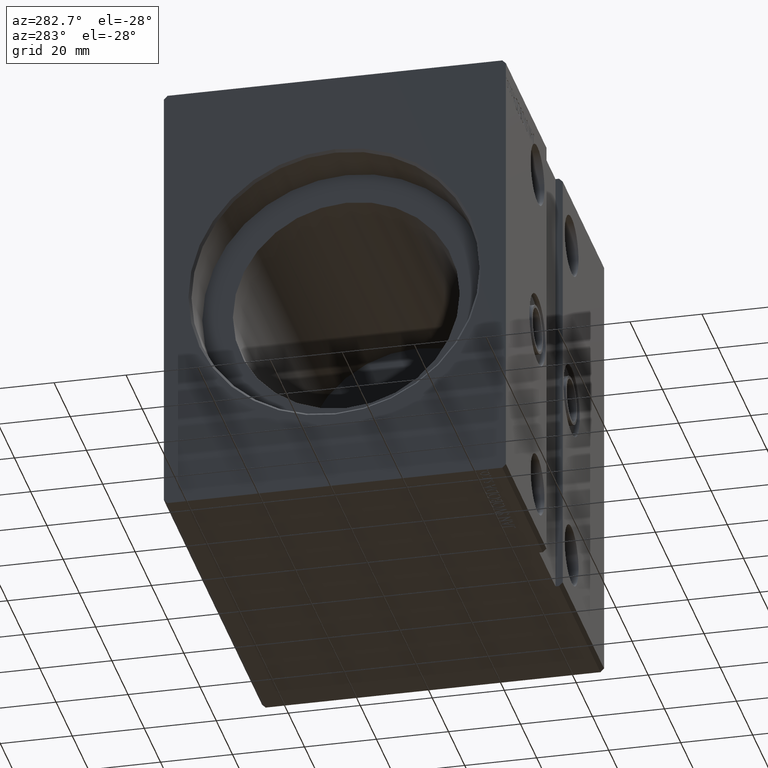
[diagram: clean part render]
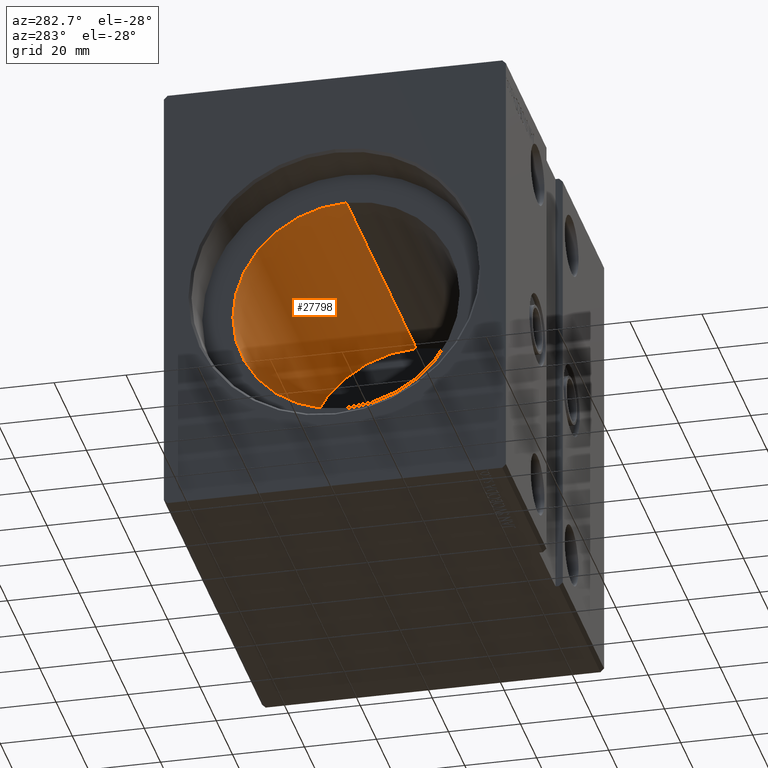
[diagram: same view with one face highlighted and labeled with its STEP entity id]
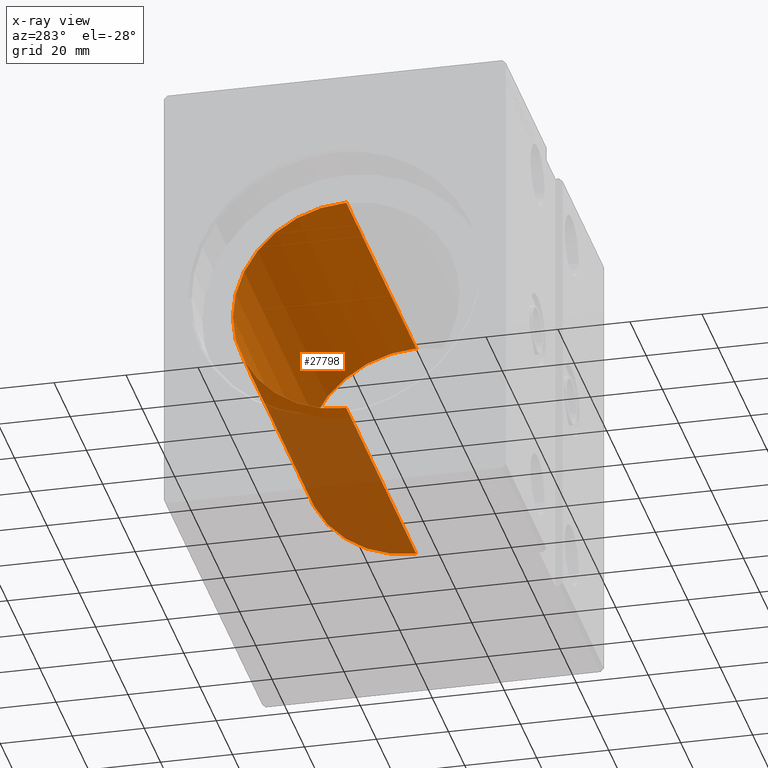
[diagram: x-ray of the same camera — body ghosted, the highlighted face saturated]
A machine part, auxiliary view. The second image highlights one B-rep face of the part: STEP entity #27798.
The next image is the same camera in x-ray: the body ghosted, the highlighted face saturated — about 30% of this face is hidden behind the body in this view.
In plain terms, the highlighted cylindrical surface (partial cylindrical patch) has radius 31.5 mm, axis along (-1, -0, -0).
Its self-contained STEP definition (entity closure, byte-faithful):
#453 = DIRECTION ( 'NONE',  ( -1.000000000000000000, -0.000000000000000000, -0.000000000000000000 ) ) ;
#1559 = DIRECTION ( 'NONE',  ( -1.000000000000000000, 0.000000000000000000, 0.000000000000000000 ) ) ;
#1640 = EDGE_LOOP ( 'NONE', ( #10073, #5265, #5868, #31668 ) ) ;
#2308 = DIRECTION ( 'NONE',  ( 0.000000000000000000, 0.000000000000000000, 1.000000000000000000 ) ) ;
#4283 = EDGE_CURVE ( 'NONE', #34338, #8319, #26242, .T. ) ;
#5265 = ORIENTED_EDGE ( 'NONE', *, *, #40065, .F. ) ;
#5368 = VERTEX_POINT ( 'NONE', #7342 ) ;
#5570 = CARTESIAN_POINT ( 'NONE',  ( 13.99999999999999822, 3.857637417314162689E-15, -31.50000000000000000 ) ) ;
#5868 = ORIENTED_EDGE ( 'NONE', *, *, #34011, .T. ) ;
#7342 = CARTESIAN_POINT ( 'NONE',  ( 100.2000000000000028, 0.000000000000000000, 31.50000000000000000 ) ) ;
#8218 = AXIS2_PLACEMENT_3D ( 'NONE', #39903, #29682, #23508 ) ;
#8319 = VERTEX_POINT ( 'NONE', #5570 ) ;
#10073 = ORIENTED_EDGE ( 'NONE', *, *, #25091, .F. ) ;
#11409 = AXIS2_PLACEMENT_3D ( 'NONE', #40781, #40358, #2308 ) ;
#11571 = DIRECTION ( 'NONE',  ( 0.000000000000000000, 0.000000000000000000, 1.000000000000000000 ) ) ;
#11882 = CYLINDRICAL_SURFACE ( 'NONE', #11409, 31.50000000000000000 ) ;
#12217 = VECTOR ( 'NONE', #453, 1000.000000000000000 ) ;
#12477 = LINE ( 'NONE', #38399, #39181 ) ;
#17636 = VERTEX_POINT ( 'NONE', #22321 ) ;
#17822 = FACE_OUTER_BOUND ( 'NONE', #1640, .T. ) ;
#22235 = DIRECTION ( 'NONE',  ( -1.000000000000000000, -0.000000000000000000, -0.000000000000000000 ) ) ;
#22321 = CARTESIAN_POINT ( 'NONE',  ( 100.2000000000000028, 3.857637417314162689E-15, -31.50000000000000000 ) ) ;
#22419 = CIRCLE ( 'NONE', #8218, 31.50000000000000000 ) ;
#23508 = DIRECTION ( 'NONE',  ( 0.000000000000000000, 0.000000000000000000, 1.000000000000000000 ) ) ;
#24699 = CARTESIAN_POINT ( 'NONE',  ( 13.99999999999999822, 0.000000000000000000, 0.000000000000000000 ) ) ;
#25091 = EDGE_CURVE ( 'NONE', #17636, #8319, #12477, .T. ) ;
#26242 = CIRCLE ( 'NONE', #40525, 31.50000000000000000 ) ;
#27349 = CARTESIAN_POINT ( 'NONE',  ( 13.99999999999999822, 0.000000000000000000, 31.50000000000000000 ) ) ;
#27798 = ADVANCED_FACE ( 'NONE', ( #17822 ), #11882, .F. ) ;
#29682 = DIRECTION ( 'NONE',  ( -1.000000000000000000, 0.000000000000000000, 0.000000000000000000 ) ) ;
#31668 = ORIENTED_EDGE ( 'NONE', *, *, #4283, .T. ) ;
#32524 = LINE ( 'NONE', #36755, #12217 ) ;
#34011 = EDGE_CURVE ( 'NONE', #5368, #34338, #32524, .T. ) ;
#34338 = VERTEX_POINT ( 'NONE', #27349 ) ;
#36755 = CARTESIAN_POINT ( 'NONE',  ( 100.2000000000000028, 0.000000000000000000, 31.50000000000000000 ) ) ;
#38399 = CARTESIAN_POINT ( 'NONE',  ( 100.2000000000000028, 3.857637417314162689E-15, -31.50000000000000000 ) ) ;
#39181 = VECTOR ( 'NONE', #22235, 1000.000000000000000 ) ;
#39903 = CARTESIAN_POINT ( 'NONE',  ( 100.2000000000000028, 0.000000000000000000, 0.000000000000000000 ) ) ;
#40065 = EDGE_CURVE ( 'NONE', #5368, #17636, #22419, .T. ) ;
#40358 = DIRECTION ( 'NONE',  ( -1.000000000000000000, -0.000000000000000000, -0.000000000000000000 ) ) ;
#40525 = AXIS2_PLACEMENT_3D ( 'NONE', #24699, #1559, #11571 ) ;
#40781 = CARTESIAN_POINT ( 'NONE',  ( 100.2000000000000028, 0.000000000000000000, 0.000000000000000000 ) ) ;